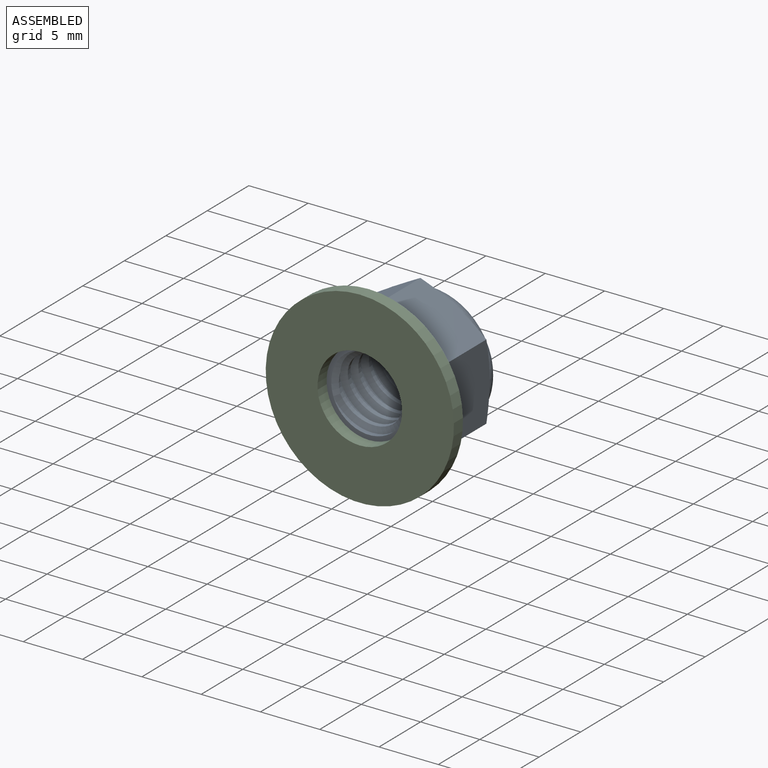
[diagram: assembled view]
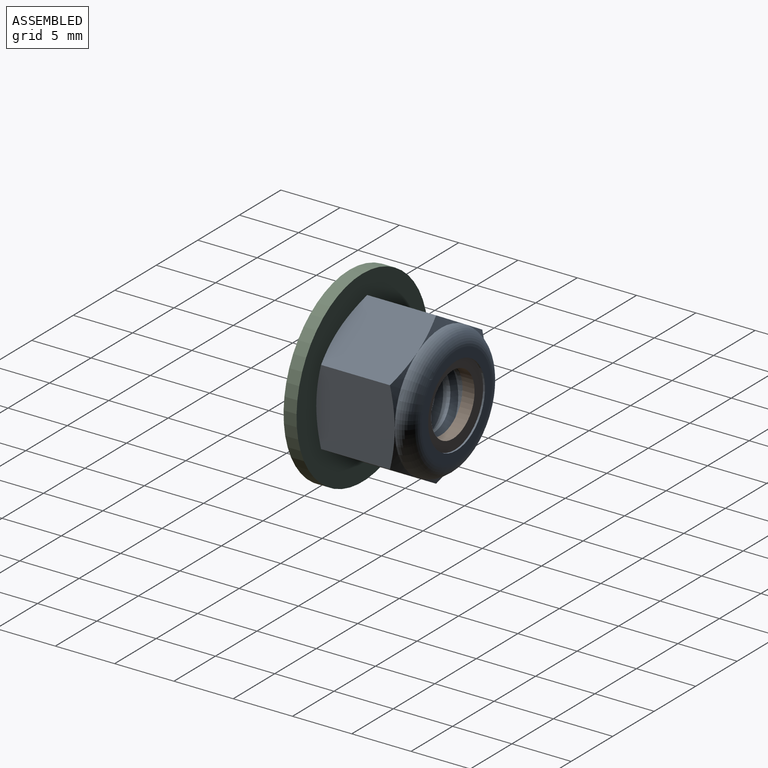
[diagram: assembled view, second angle]
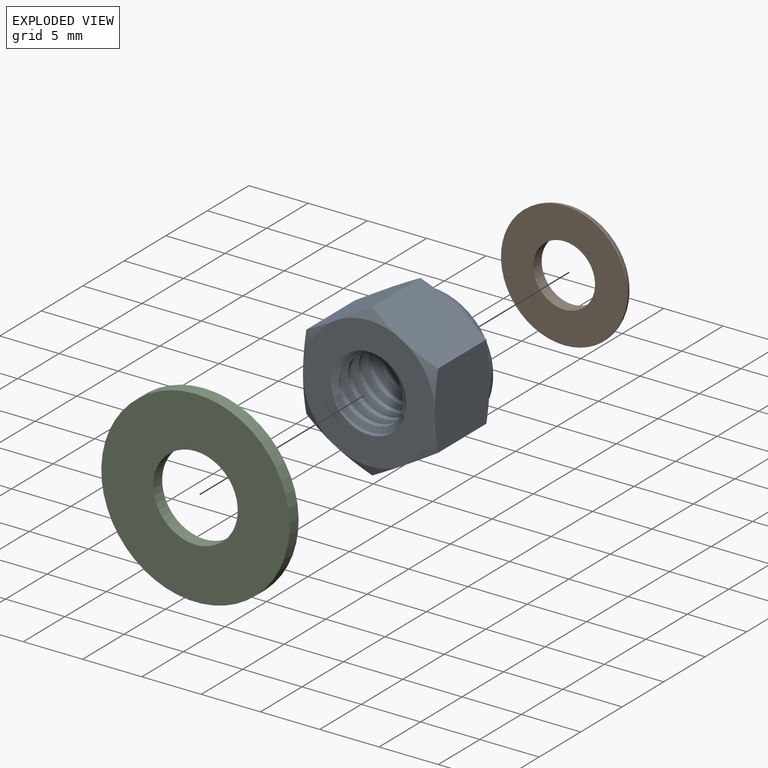
[diagram: exploded view]
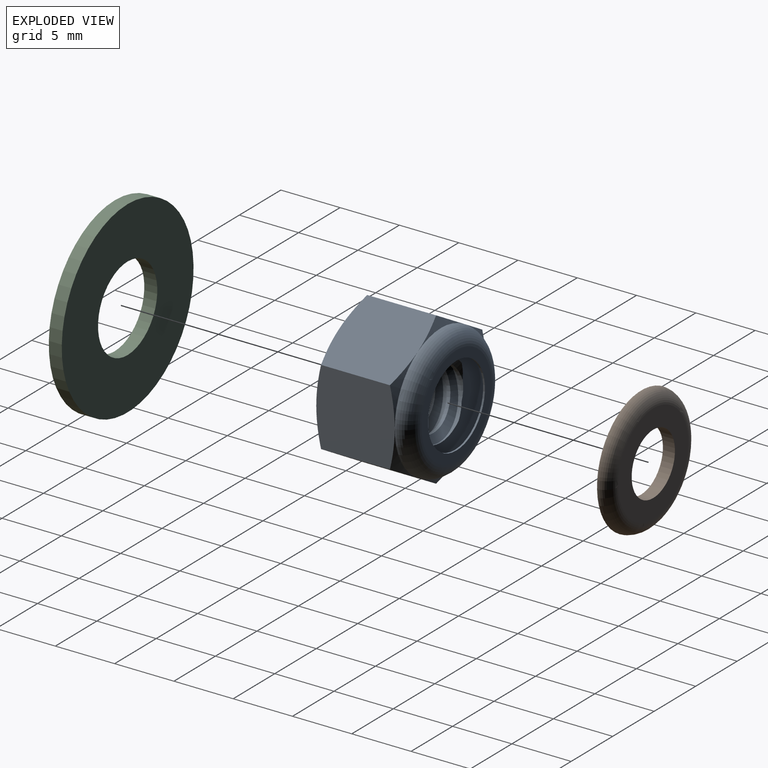
[diagram: exploded view, second angle]
ASSEMBLY  parts=3 mates=2
PART A: 51 faces, bbox 13.3x8.6x13.3 mm
  f0: torus R=4.23mm, axis (0,-1,0), area 57.5mm2, adj f49,f50
  f1: cylinder r=3.42mm len=6.84mm, axis (0,-1,0), area 3.3mm2, adj f27,f50
  f2: torus R=4.23mm, axis (0,-1,0), area 66.3mm2, adj f3,f27,f38,f39,f40,f41,f42
  f3: cone r=5.56mm half-angle=65deg, axis (0,-1,0), area 2.9mm2, adj f2,f47,f48
  f4: cone r=6.42mm half-angle=65deg, axis (0,1,0), area 2.9mm2, adj f28,f44,f45
  f5: cylinder r=3.17mm len=6mm, axis (0,-1,0), area 1.7mm2, adj f25,f28
  f6: cone r=2.69mm half-angle=60deg, axis (0,-0.98,-0.2), area 12mm2, adj f7,f24
  f7: cylinder r=2.69mm len=5.39mm, axis (0,0.98,0.2), area 5.4mm2, adj f6,f8
  f8: cone r=3.38mm half-angle=60deg, axis (0,0.98,0.2), area 12mm2, adj f7,f23
  f9: cone r=2.69mm half-angle=60deg, axis (0,-0.98,-0.2), area 12mm2, adj f10,f23
  f10: cylinder r=2.69mm len=5.39mm, axis (0,0.98,0.2), area 5.4mm2, adj f9,f11
  f11: cone r=3.38mm half-angle=60deg, axis (0,0.98,0.2), area 12mm2, adj f10,f22
  f12: cone r=2.69mm half-angle=60deg, axis (0,-0.98,-0.2), area 12mm2, adj f13,f22
  f13: cylinder r=2.69mm len=5.39mm, axis (0,0.98,0.2), area 5.4mm2, adj f12,f14
  f14: cone r=3.38mm half-angle=60deg, axis (0,0.98,0.2), area 12mm2, adj f13,f21
  f15: cone r=2.69mm half-angle=60deg, axis (0,-0.98,-0.2), area 12mm2, adj f16,f21
  f16: cylinder r=2.69mm len=5.39mm, axis (0,0.98,0.2), area 5.4mm2, adj f15,f17
  f17: cone r=3.38mm half-angle=60deg, axis (0,0.98,0.2), area 12mm2, adj f16,f20
  f18: cylinder r=2.69mm len=5.39mm, axis (0,0.98,0.2), area 2.8mm2, adj f19,f32,f49
  f19: cone r=3.38mm half-angle=60deg, axis (0,0.98,0.2), area 3.5mm2, adj f18,f31,f49
  f20: cylinder r=3.17mm len=6.35mm, axis (0,-1,0), area 6.2mm2, adj f17,f32,f49
  f21: cylinder r=3.17mm len=6.35mm, axis (0,-1,0), area 6.8mm2, adj f14,f15
  f22: cylinder r=3.17mm len=6.35mm, axis (0,-1,0), area 6.8mm2, adj f11,f12
  f23: cylinder r=3.17mm len=6.35mm, axis (0,-1,0), area 6.8mm2, adj f8,f9
  f24: cylinder r=3.17mm len=6.35mm, axis (0,-1,0), area 6.8mm2, adj f6,f26
  f25: cone r=2.69mm half-angle=60deg, axis (0,-0.98,-0.2), area 3.9mm2, adj f5,f29,f30
  f26: cone r=3.38mm half-angle=60deg, axis (0,0.98,0.2), area 8.8mm2, adj f24,f29,f30
  f27: plane 8.47x8.47mm, normal (0,1,0), area 19.5mm2, adj f1,f2
  f28: plane 11.11x11.11mm, normal (0,-1,0), area 65.3mm2, adj f4,f5,f29,f33,f34,f35,f36,f37
  f29: cone r=3.17mm half-angle=65deg, axis (0,-1,0), area 4.1mm2, adj f25,f26,f28,f30
  f30: cylinder r=2.69mm len=5.39mm, axis (0,0.98,0.2), area 2.7mm2, adj f25,f26,f29
  f31: cylinder r=3.17mm len=5.02mm, axis (0,-1,0), area 0.7mm2, adj f19,f49
  f32: cone r=2.69mm half-angle=60deg, axis (0,-0.98,-0.2), area 8.4mm2, adj f18,f20,f49
  f33: cone r=6.42mm half-angle=65deg, axis (0,1,0), area 2.9mm2, adj f28,f47,f48
  f34: cone r=6.42mm half-angle=65deg, axis (0,1,0), area 2.9mm2, adj f28,f43,f48
  f35: cone r=6.42mm half-angle=65deg, axis (0,1,0), area 2.9mm2, adj f28,f43,f44
  f36: cone r=6.42mm half-angle=65deg, axis (0,1,0), area 2.9mm2, adj f28,f45,f46
  f37: cone r=6.42mm half-angle=65deg, axis (0,1,0), area 2.9mm2, adj f28,f46,f47
  f38: cone r=5.56mm half-angle=65deg, axis (0,-1,0), area 2.9mm2, adj f2,f45,f46
  f39: cone r=5.56mm half-angle=65deg, axis (0,-1,0), area 2.9mm2, adj f2,f46,f47
  f40: cone r=5.56mm half-angle=65deg, axis (0,-1,0), area 2.9mm2, adj f2,f44,f45
  f41: cone r=5.56mm half-angle=65deg, axis (0,-1,0), area 2.9mm2, adj f2,f43,f48
  f42: cone r=5.56mm half-angle=65deg, axis (0,-1,0), area 2.9mm2, adj f2,f43,f44
  f43: plane 7.12x6.92mm, normal (1,0,0), area 40.7mm2, adj f34,f35,f41,f42,f44,f48
  f44: plane 7.12x6.06mm, normal (0.5,0,0.87), area 40.7mm2, adj f4,f35,f40,f42,f43,f45
  f45: plane 7.12x6.06mm, normal (-0.5,0,0.87), area 40.7mm2, adj f4,f36,f38,f40,f44,f46
  f46: plane 7.12x6.92mm, normal (-1,0,0), area 40.7mm2, adj f36,f37,f38,f39,f45,f47
  f47: plane 7.12x6.06mm, normal (-0.5,0,-0.87), area 40.7mm2, adj f3,f33,f37,f39,f46,f48
  f48: plane 7.12x6.06mm, normal (0.5,0,-0.87), area 40.7mm2, adj f3,f33,f34,f41,f43,f47
  f49: plane 10.86x10.86mm, normal (0,1,0), area 63.1mm2, adj f0,f18,f19,f20,f31,f32
  f50: plane 8.47x8.47mm, normal (0,-1,0), area 19.5mm2, adj f0,f1
PART B: 4 faces, bbox 11.5x1.1x11.5 mm
  f0: torus R=4.23mm, axis (0,-1,0), area 50.7mm2, adj f2,f3
  f1: cylinder r=2.61mm len=5.22mm, axis (0,-1,0), area 16.7mm2, adj f2,f3
  f2: plane 10.65x10.65mm, normal (0,-1,0), area 67.7mm2, adj f0,f1
  f3: plane 8.47x8.47mm, normal (0,1,0), area 34.9mm2, adj f0,f1
PART C: 4 faces, bbox 15.9x1.1x15.9 mm
  f0: cylinder r=3.57mm len=7.14mm, axis (0,1,0), area 24.5mm2, adj f2,f3
  f1: cylinder r=7.94mm len=15.88mm, axis (0,-1,0), area 54.5mm2, adj f2,f3
  f2: plane 15.88x15.88mm, normal (0,1,0), area 157.9mm2, adj f0,f1
  f3: plane 15.88x15.88mm, normal (0,-1,0), area 157.9mm2, adj f0,f1
PLACE A t=(1.45,2.41,5.81)mm
PLACE B t=(1.45,2.33,5.81)mm
PLACE C t=(1.45,1.32,5.81)mm
MATE fastened A.f0 <-> B.f1  axis (0,1,0) through (1.45,9.02,5.81)mm
MATE fastened C.f0 <-> A.f2  axis (0,1,0) through (1.45,2.41,5.81)mm
